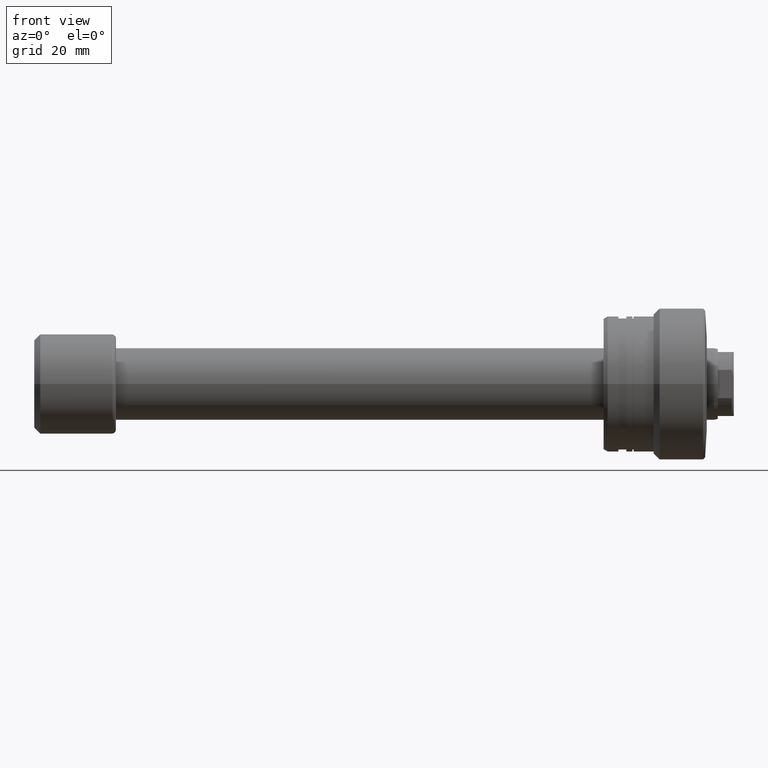
[diagram: clean part render]
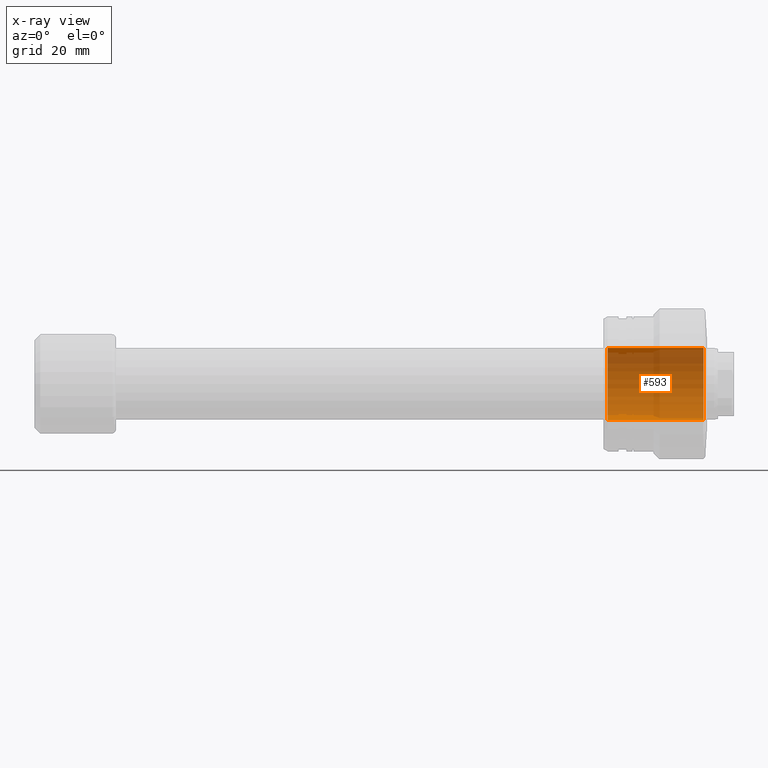
[diagram: x-ray — body ghosted, one internal face saturated and labeled with its STEP entity id]
A machine part, front view, then the same camera in x-ray: the body is ghosted and one INTERNAL B-rep face — a face not visible from any outside direction — is saturated and labeled: STEP entity #593.
In plain terms, the highlighted cylindrical surface (edge-blend (fillet) strip) has radius 9 mm, axis along (1, 0, 0).
Its self-contained STEP definition (entity closure, byte-faithful):
#108 = DIRECTION ( 'NONE',  ( 1.000000000000000000, -0.000000000000000000, -0.000000000000000000 ) ) ;
#142 = DIRECTION ( 'NONE',  ( 1.000000000000000000, 0.000000000000000000, 0.000000000000000000 ) ) ;
#188 = CARTESIAN_POINT ( 'NONE',  ( -25.50000000000003197, 0.000000000000000000, 0.000000000000000000 ) ) ;
#198 = EDGE_CURVE ( 'NONE', #2319, #932, #1526, .T. ) ;
#285 = VECTOR ( 'NONE', #108, 1000.000000000000000 ) ;
#295 = CARTESIAN_POINT ( 'NONE',  ( -51.95584412271570329, 0.000000000000000000, -9.000000000000000000 ) ) ;
#315 = EDGE_CURVE ( 'NONE', #467, #503, #2376, .T. ) ;
#368 = EDGE_LOOP ( 'NONE', ( #385, #1080, #2242, #1573 ) ) ;
#385 = ORIENTED_EDGE ( 'NONE', *, *, #644, .F. ) ;
#420 = CARTESIAN_POINT ( 'NONE',  ( -25.50000000000003197, 1.102182119232617517E-15, 9.000000000000000000 ) ) ;
#450 = DIRECTION ( 'NONE',  ( 1.000000000000000000, -0.000000000000000000, -0.000000000000000000 ) ) ;
#467 = VERTEX_POINT ( 'NONE', #420 ) ;
#473 = LINE ( 'NONE', #295, #285 ) ;
#503 = VERTEX_POINT ( 'NONE', #621 ) ;
#513 = AXIS2_PLACEMENT_3D ( 'NONE', #188, #2444, #950 ) ;
#593 = ADVANCED_FACE ( 'NONE', ( #1916 ), #980, .F. ) ;
#621 = CARTESIAN_POINT ( 'NONE',  ( -25.50000000000003197, 0.000000000000000000, -9.000000000000000000 ) ) ;
#644 = EDGE_CURVE ( 'NONE', #467, #932, #1708, .T. ) ;
#676 = VECTOR ( 'NONE', #450, 1000.000000000000000 ) ;
#902 = CARTESIAN_POINT ( 'NONE',  ( -1.500000000000000000, 1.102182119232617517E-15, 9.000000000000000000 ) ) ;
#932 = VERTEX_POINT ( 'NONE', #902 ) ;
#950 = DIRECTION ( 'NONE',  ( 0.000000000000000000, 0.000000000000000000, 1.000000000000000000 ) ) ;
#959 = AXIS2_PLACEMENT_3D ( 'NONE', #2096, #1946, #1028 ) ;
#980 = CYLINDRICAL_SURFACE ( 'NONE', #959, 9.000000000000000000 ) ;
#1008 = CARTESIAN_POINT ( 'NONE',  ( -1.500000000000000000, 0.000000000000000000, -9.000000000000000000 ) ) ;
#1028 = DIRECTION ( 'NONE',  ( 0.000000000000000000, 0.000000000000000000, -1.000000000000000000 ) ) ;
#1080 = ORIENTED_EDGE ( 'NONE', *, *, #315, .T. ) ;
#1449 = DIRECTION ( 'NONE',  ( 0.000000000000000000, 0.000000000000000000, -1.000000000000000000 ) ) ;
#1526 = CIRCLE ( 'NONE', #1966, 9.000000000000000000 ) ;
#1573 = ORIENTED_EDGE ( 'NONE', *, *, #198, .T. ) ;
#1708 = LINE ( 'NONE', #2340, #676 ) ;
#1843 = CARTESIAN_POINT ( 'NONE',  ( -1.500000000000000000, 0.000000000000000000, 0.000000000000000000 ) ) ;
#1916 = FACE_OUTER_BOUND ( 'NONE', #368, .T. ) ;
#1946 = DIRECTION ( 'NONE',  ( 1.000000000000000000, -0.000000000000000000, -0.000000000000000000 ) ) ;
#1966 = AXIS2_PLACEMENT_3D ( 'NONE', #1843, #142, #1449 ) ;
#2096 = CARTESIAN_POINT ( 'NONE',  ( -51.95584412271570329, 0.000000000000000000, 0.000000000000000000 ) ) ;
#2230 = EDGE_CURVE ( 'NONE', #503, #2319, #473, .T. ) ;
#2242 = ORIENTED_EDGE ( 'NONE', *, *, #2230, .T. ) ;
#2319 = VERTEX_POINT ( 'NONE', #1008 ) ;
#2340 = CARTESIAN_POINT ( 'NONE',  ( -51.95584412271570329, 1.102182119232617517E-15, 9.000000000000000000 ) ) ;
#2376 = CIRCLE ( 'NONE', #513, 9.000000000000000000 ) ;
#2444 = DIRECTION ( 'NONE',  ( -1.000000000000000000, -0.000000000000000000, -0.000000000000000000 ) ) ;